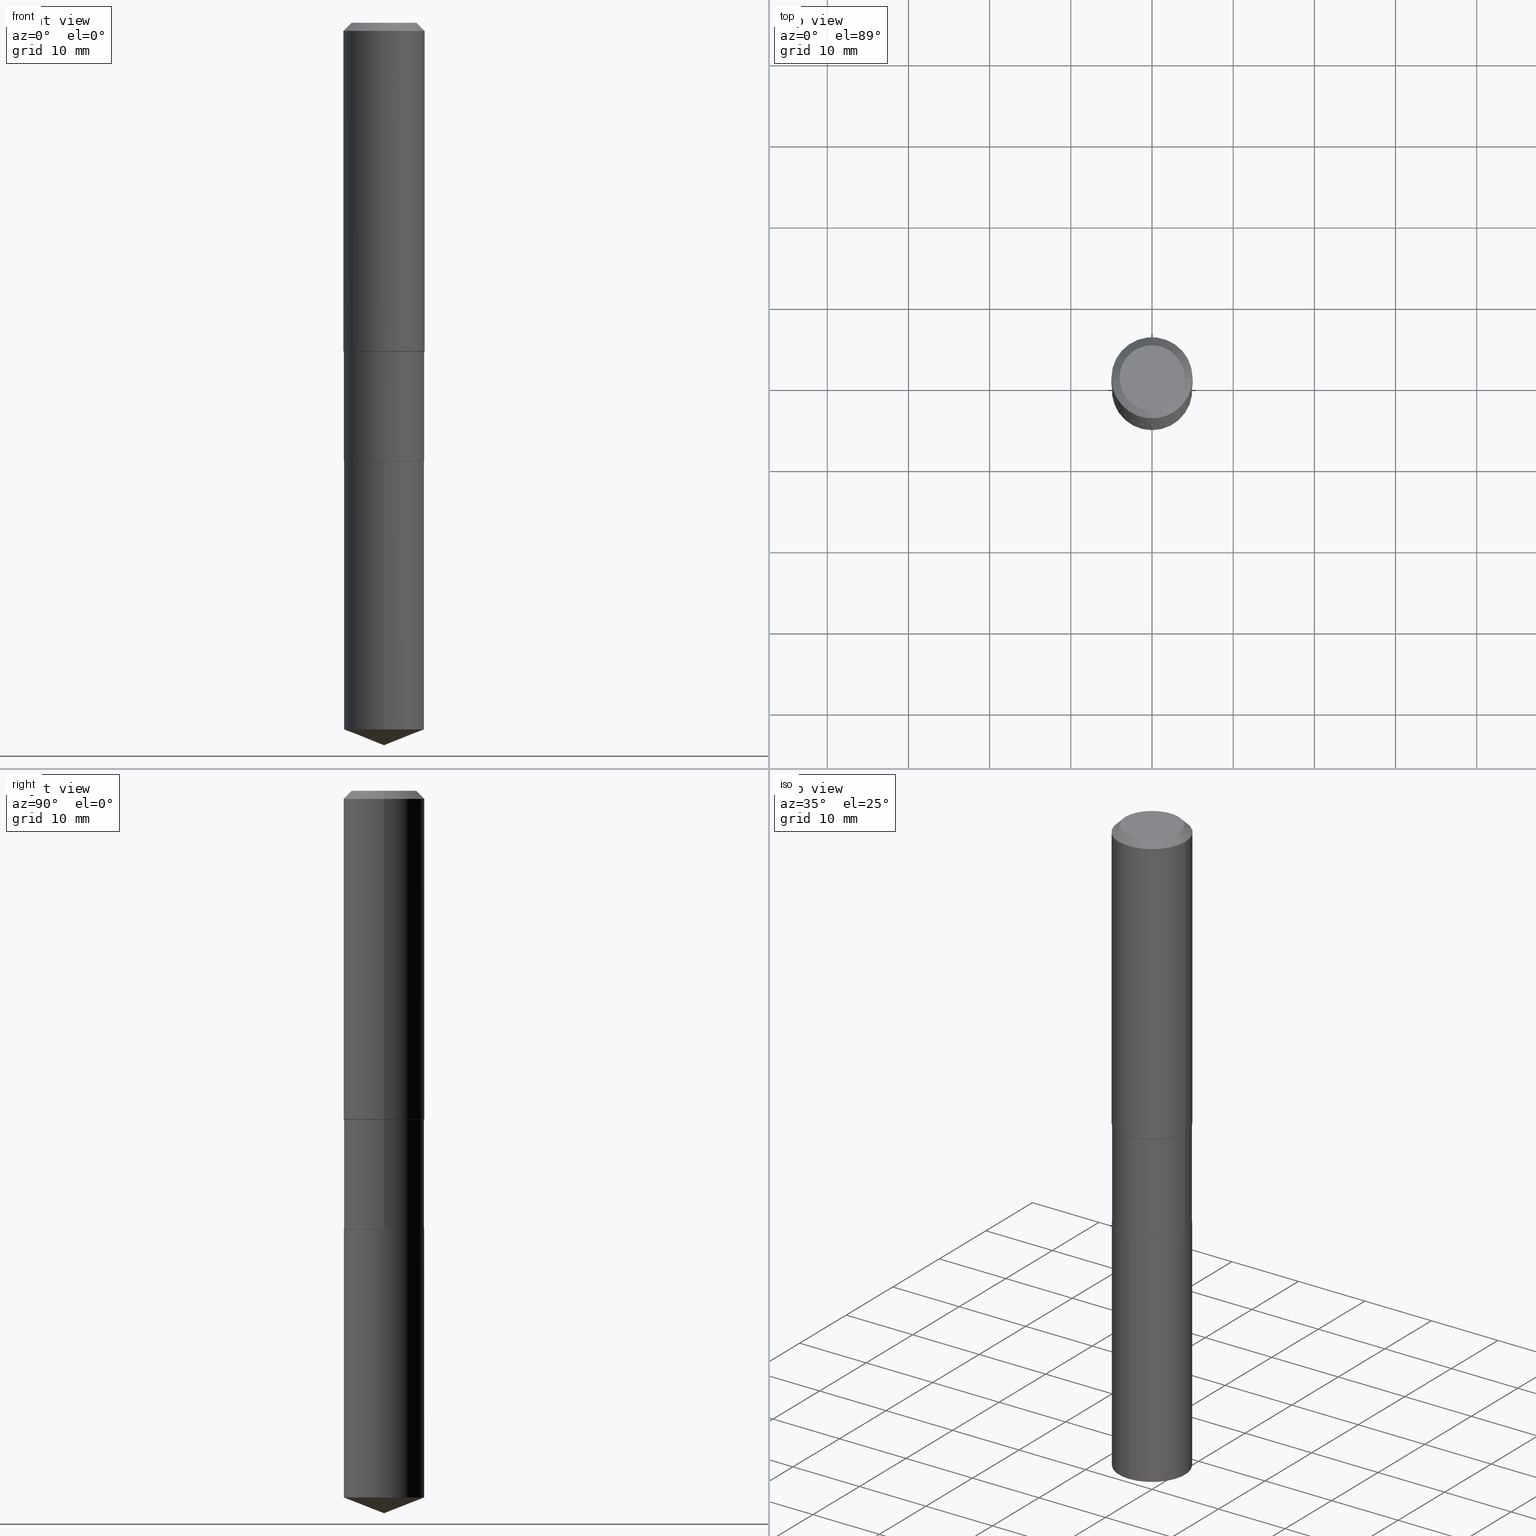
[diagram: canonical four-view strip — front | top / right | iso, engineering-drawing reading convention]
A machine part, canonical four-view strip (front | top / right | iso — engineering-drawing reading convention). The complete STEP part file that produces these views, byte-faithful:
ISO-10303-21;
HEADER;
FILE_DESCRIPTION (( 'STEP AP203' ),
    '1' );
FILE_NAME ('66469.STEP',
    '2024-04-24T23:18:03',
    ( '' ),
    ( '' ),
    'SwSTEP 2.0',
    'SolidWorks 2023',
    '' );
FILE_SCHEMA (( 'CONFIG_CONTROL_DESIGN' ));
ENDSEC;

DATA;
#1 = EDGE_CURVE ( 'NONE', #280, #487, #127, .T. ) ;
#2 = DIRECTION ( 'NONE',  ( 2.445468806185136597E-29, -3.491481338843145583E-15, -1.000000000000000000 ) ) ;
#3 = DIRECTION ( 'NONE',  ( -2.445600057802036841E-29, 3.491293379057366203E-15, 1.000000000000000000 ) ) ;
#4 = DIRECTION ( 'NONE',  ( -2.445468806185136877E-29, 3.491481338843145188E-15, 1.000000000000000000 ) ) ;
#5 = FACE_OUTER_BOUND ( 'NONE', #322, .T. ) ;
#6 = AXIS2_PLACEMENT_3D ( 'NONE', #312, #380, #207 ) ;
#7 = EDGE_CURVE ( 'NONE', #487, #280, #344, .T. ) ;
#8 = DIRECTION ( 'NONE',  ( -2.445468806185136597E-29, 3.491481338843145583E-15, 1.000000000000000000 ) ) ;
#9 = DIRECTION ( 'NONE',  ( -2.445468806185136597E-29, 3.491481338843145583E-15, 1.000000000000000000 ) ) ;
#10 = CONICAL_SURFACE ( 'NONE', #203, 0.1948999999999999067, 0.7853981633974658205 ) ;
#11 = AXIS2_PLACEMENT_3D ( 'NONE', #171, #307, #15 ) ;
#12 = ADVANCED_FACE ( 'NONE', ( #341 ), #265, .T. ) ;
#13 = CARTESIAN_POINT ( 'NONE',  ( 5.197599400665889285E-29, -7.420794437577220826E-15, -2.125399999999999956 ) ) ;
#14 = ORIENTED_EDGE ( 'NONE', *, *, #350, .F. ) ;
#15 = DIRECTION ( 'NONE',  ( 1.000000000000000000, -6.982962677686265922E-15, 0.000000000000000000 ) ) ;
#16 = EDGE_LOOP ( 'NONE', ( #366, #244, #111 ) ) ;
#17 = DIRECTION ( 'NONE',  ( -2.445468806185136597E-29, 3.491481338843145583E-15, 1.000000000000000000 ) ) ;
#18 = MECHANICAL_CONTEXT ( 'NONE', #185, 'mechanical' ) ;
#19 = AXIS2_PLACEMENT_3D ( 'NONE', #423, #474, #337 ) ;
#20 = APPROVAL_PERSON_ORGANIZATION ( #216, #158, #91 ) ;
#21 = CARTESIAN_POINT ( 'NONE',  ( -0.1968500000000000250, 1.237136582792286225E-15, -0.03937000000000029365 ) ) ;
#22 = LENGTH_MEASURE_WITH_UNIT ( LENGTH_MEASURE( 0.02539999999999999897 ), #97 );
#23 = DIRECTION ( 'NONE',  ( -6.982962677686266711E-15, -1.000000000000000000, 2.803332984776052637E-15 ) ) ;
#24 = VERTEX_POINT ( 'NONE', #122 ) ;
#25 = CARTESIAN_POINT ( 'NONE',  ( 0.000000000000000000, 0.000000000000000000, 0.000000000000000000 ) ) ;
#26 = ORIENTED_EDGE ( 'NONE', *, *, #379, .T. ) ;
#27 = LINE ( 'NONE', #21, #399 ) ;
#28 = DIRECTION ( 'NONE',  ( 1.000000000000000000, -6.982962677686265922E-15, 4.876223630392693006E-29 ) ) ;
#29 = ORIENTED_EDGE ( 'NONE', *, *, #325, .T. ) ;
#30 = PERSON_AND_ORGANIZATION ( #125, #138 ) ;
#31 = ADVANCED_FACE ( 'NONE', ( #233 ), #164, .F. ) ;
#32 = AXIS2_PLACEMENT_3D ( 'NONE', #415, #456, #86 ) ;
#33 = AXIS2_PLACEMENT_3D ( 'NONE', #333, #2, #159 ) ;
#34 = VERTEX_POINT ( 'NONE', #199 ) ;
#35 = ORIENTED_EDGE ( 'NONE', *, *, #167, .F. ) ;
#36 = EDGE_CURVE ( 'NONE', #488, #224, #46, .T. ) ;
#37 = FACE_OUTER_BOUND ( 'NONE', #218, .T. ) ;
#38 = CARTESIAN_POINT ( 'NONE',  ( -8.771460782787969861E-28, 1.252189527838912910E-13, 35.86617874015747987 ) ) ;
#39 = AXIS2_PLACEMENT_3D ( 'NONE', #263, #52, #78 ) ;
#40 = CARTESIAN_POINT ( 'NONE',  ( 0.1943999999999999895, -8.780028122788853203E-15, -2.125899999999999679 ) ) ;
#41 = AXIS2_PLACEMENT_3D ( 'NONE', #133, #272, #385 ) ;
#42 = DIRECTION ( 'NONE',  ( -2.445468806185136597E-29, 3.491481338843145583E-15, 1.000000000000000000 ) ) ;
#43 = CARTESIAN_POINT ( 'NONE',  ( 3.900522745865292334E-29, -5.568912735454817265E-15, -1.594999999999999751 ) ) ;
#44 = ADVANCED_FACE ( 'NONE', ( #334 ), #220, .T. ) ;
#45 = CARTESIAN_POINT ( 'NONE',  ( -0.1968500000000002192, -4.163400971500313642E-15, -1.593049999999999633 ) ) ;
#46 = LINE ( 'NONE', #301, #259 ) ;
#47 = CARTESIAN_POINT ( 'NONE',  ( -0.1948999999999999344, 1.384847791996434796E-15, -9.587004490906808522E-30 ) ) ;
#48 = DIRECTION ( 'NONE',  ( 6.982962677686265922E-15, 1.000000000000000000, -3.491293379057366203E-15 ) ) ;
#49 = AXIS2_PLACEMENT_3D ( 'NONE', #231, #452, #373 ) ;
#50 = DIRECTION ( 'NONE',  ( 1.000000000000000000, -6.982962677686265922E-15, 4.876223630392693006E-29 ) ) ;
#51 = DIRECTION ( 'NONE',  ( -2.445600057802036841E-29, 3.491293379057366203E-15, 1.000000000000000000 ) ) ;
#52 = DIRECTION ( 'NONE',  ( -2.445468806185136597E-29, 3.491481338843145583E-15, 1.000000000000000000 ) ) ;
#53 = ORIENTED_EDGE ( 'NONE', *, *, #183, .T. ) ;
#54 = DATE_AND_TIME ( #430, #151 ) ;
#55 = APPROVAL_PERSON_ORGANIZATION ( #470, #176, #275 ) ;
#56 = ORIENTED_EDGE ( 'NONE', *, *, #313, .T. ) ;
#57 = APPLICATION_PROTOCOL_DEFINITION ( 'international standard', 'config_control_design', 1994, #206 ) ;
#58 = CARTESIAN_POINT ( 'NONE',  ( 0.1968500000000000250, -1.512055823412797189E-15, -0.03937000000000029365 ) ) ;
#59 = DIRECTION ( 'NONE',  ( 1.000000000000000000, -6.982962677686265922E-15, 4.876176775795935793E-29 ) ) ;
#60 = ADVANCED_FACE ( 'NONE', ( #5 ), #398, .T. ) ;
#61 = PERSON_AND_ORGANIZATION ( #125, #138 ) ;
#62 = ORIENTED_EDGE ( 'NONE', *, *, #298, .T. ) ;
#63 = AXIS2_PLACEMENT_3D ( 'NONE', #283, #74, #434 ) ;
#64 = ORIENTED_EDGE ( 'NONE', *, *, #420, .F. ) ;
#65 = LINE ( 'NONE', #353, #161 ) ;
#66 = DATE_AND_TIME ( #278, #377 ) ;
#67 = ORIENTED_EDGE ( 'NONE', *, *, #102, .F. ) ;
#68 = ADVANCED_FACE ( 'NONE', ( #330 ), #448, .F. ) ;
#69 = ORIENTED_EDGE ( 'NONE', *, *, #1, .F. ) ;
#70 = VECTOR ( 'NONE', #267, 39.37007874015748143 ) ;
#71 = VERTEX_POINT ( 'NONE', #227 ) ;
#72 = ORIENTED_EDGE ( 'NONE', *, *, #183, .F. ) ;
#73 = EDGE_CURVE ( 'NONE', #386, #487, #371, .T. ) ;
#74 = DIRECTION ( 'NONE',  ( -2.445468806185136597E-29, 3.491481338843145583E-15, 1.000000000000000000 ) ) ;
#75 = DIRECTION ( 'NONE',  ( -1.000000000000000000, 6.982962677686265922E-15, -4.876176775795935793E-29 ) ) ;
#76 = CLOSED_SHELL ( 'NONE', ( #256, #335, #93, #124, #135, #172, #12, #401, #44, #68, #467, #80 ) ) ;
#77 = AXIS2_PLACEMENT_3D ( 'NONE', #25, #355, #104 ) ;
#78 = DIRECTION ( 'NONE',  ( 1.000000000000000000, -6.982962677686267499E-15, 0.000000000000000000 ) ) ;
#79 = DIRECTION ( 'NONE',  ( 1.000000000000000000, -6.982962677686267499E-15, 0.000000000000000000 ) ) ;
#80 = ADVANCED_FACE ( 'NONE', ( #293 ), #240, .T. ) ;
#81 = CARTESIAN_POINT ( 'NONE',  ( -1.360979425881001224E-15, -0.1949000000000074007, -2.125899999999999235 ) ) ;
#82 = CARTESIAN_POINT ( 'NONE',  ( 5.198822135068982087E-29, -7.422540178246643119E-15, -2.125899999999999679 ) ) ;
#83 = AXIS2_PLACEMENT_3D ( 'NONE', #279, #42, #28 ) ;
#84 = CC_DESIGN_APPROVAL ( #158, ( #306 ) ) ;
#85 = CARTESIAN_POINT ( 'NONE',  ( -0.1968500000000000250, -1.451078608233405323E-15, -0.03937000000000029365 ) ) ;
#86 = DIRECTION ( 'NONE',  ( -1.000000000000000000, 6.982962677686265922E-15, 0.000000000000000000 ) ) ;
#87 = CYLINDRICAL_SURFACE ( 'NONE', #296, 0.1968500000000001082 ) ;
#88 = DATE_TIME_ROLE ( 'classification_date' ) ;
#89 = CC_DESIGN_PERSON_AND_ORGANIZATION_ASSIGNMENT ( #421, #103, ( #354 ) ) ;
#90 = DIRECTION ( 'NONE',  ( -2.445468806185136597E-29, 3.491481338843145583E-15, 1.000000000000000000 ) ) ;
#91 = APPROVAL_ROLE ( '' ) ;
#92 = CARTESIAN_POINT ( 'NONE',  ( -0.1943999999999999895, -6.038595872754897034E-15, -2.125899999999999679 ) ) ;
#93 = ADVANCED_FACE ( 'NONE', ( #282 ), #87, .T. ) ;
#94 = PLANE ( 'NONE',  #221 ) ;
#95 = VERTEX_POINT ( 'NONE', #416 ) ;
#96 = CALENDAR_DATE ( 2024, 24, 4 ) ;
#97 =( LENGTH_UNIT ( ) NAMED_UNIT ( * ) SI_UNIT ( $, .METRE. ) );
#98 = DIRECTION ( 'NONE',  ( -6.982962677686266711E-15, -1.000000000000000000, 2.803332984776052637E-15 ) ) ;
#99 = DATE_AND_TIME ( #426, #321 ) ;
#100 = DIRECTION ( 'NONE',  ( -2.445468806185136597E-29, 3.491481338843145583E-15, 1.000000000000000000 ) ) ;
#101 = ORIENTED_EDGE ( 'NONE', *, *, #192, .F. ) ;
#102 = EDGE_CURVE ( 'NONE', #142, #388, #160, .T. ) ;
#103 = PERSON_AND_ORGANIZATION_ROLE ( 'creator' ) ;
#104 = DIRECTION ( 'NONE',  ( 1.000000000000000000, 0.000000000000000000, 0.000000000000000000 ) ) ;
#105 = VERTEX_POINT ( 'NONE', #92 ) ;
#106 = CIRCLE ( 'NONE', #247, 0.1948999999999999899 ) ;
#107 = CC_DESIGN_DATE_AND_TIME_ASSIGNMENT ( #66, #180, ( #342 ) ) ;
#108 = APPROVAL_DATE_TIME ( #99, #176 ) ;
#109 = LINE ( 'NONE', #360, #212 ) ;
#110 = ORIENTED_EDGE ( 'NONE', *, *, #208, .T. ) ;
#111 = ORIENTED_EDGE ( 'NONE', *, *, #336, .F. ) ;
#112 = ORIENTED_EDGE ( 'NONE', *, *, #148, .F. ) ;
#113 = VECTOR ( 'NONE', #156, 39.37007874015748143 ) ;
#114 = CC_DESIGN_APPROVAL ( #176, ( #342 ) ) ;
#115 = ORIENTED_EDGE ( 'NONE', *, *, #485, .T. ) ;
#116 = DIRECTION ( 'NONE',  ( -2.445600057802036841E-29, 3.491293379057366203E-15, 1.000000000000000000 ) ) ;
#117 = DIRECTION ( 'NONE',  ( 2.438088387897960049E-29, -3.491481338843145188E-15, -1.000000000000000000 ) ) ;
#118 = DIRECTION ( 'NONE',  ( -2.445468806185136597E-29, 3.491481338843145583E-15, 1.000000000000000000 ) ) ;
#119 = CIRCLE ( 'NONE', #6, 0.1948999999999999899 ) ;
#120 = EDGE_CURVE ( 'NONE', #24, #386, #363, .T. ) ;
#121 = CARTESIAN_POINT ( 'NONE',  ( 1.384847791996486861E-15, 0.1948999999999925792, -2.125900000000000567 ) ) ;
#122 = CARTESIAN_POINT ( 'NONE',  ( 0.1948999999999999067, -6.929892161335869568E-15, -1.594999999999999751 ) ) ;
#123 = CARTESIAN_POINT ( 'NONE',  ( 0.1948999999999999067, -6.929892161335869568E-15, -1.594999999999999751 ) ) ;
#124 = ADVANCED_FACE ( 'NONE', ( #326 ), #10, .T. ) ;
#125 = PERSON ( 'UNSPECIFIED', 'UNSPECIFIED', 'UNSPECIFIED', ('UNSPECIFIED'), ('UNSPECIFIED'), ('UNSPECIFIED') ) ;
#126 = DIRECTION ( 'NONE',  ( 1.000000000000000000, -6.982962677686267499E-15, 0.000000000000000000 ) ) ;
#127 = CIRCLE ( 'NONE', #443, 0.1968500000000000250 ) ;
#128 = UNCERTAINTY_MEASURE_WITH_UNIT (LENGTH_MEASURE( 1.000000000000000082E-05 ), #393, 'distance_accuracy_value', 'NONE');
#129 = DATE_AND_TIME ( #96, #174 ) ;
#130 = VECTOR ( 'NONE', #4, 39.37007874015748143 ) ;
#131 = FACE_OUTER_BOUND ( 'NONE', #367, .T. ) ;
#132 = LINE ( 'NONE', #81, #213 ) ;
#133 = CARTESIAN_POINT ( 'NONE',  ( -8.771460782787969861E-28, 1.252189527838912910E-13, 35.86617874015747987 ) ) ;
#134 = ORIENTED_EDGE ( 'NONE', *, *, #73, .T. ) ;
#135 = ADVANCED_FACE ( 'NONE', ( #37 ), #480, .T. ) ;
#136 = APPROVAL_STATUS ( 'not_yet_approved' ) ;
#137 = AXIS2_PLACEMENT_3D ( 'NONE', #43, #455, #79 ) ;
#138 = ORGANIZATION ( 'UNSPECIFIED', 'UNSPECIFIED', '' ) ;
#139 = EDGE_LOOP ( 'NONE', ( #14, #476, #303, #251 ) ) ;
#140 = DIRECTION ( 'NONE',  ( 1.000000000000000000, -6.982962677686265922E-15, 0.000000000000000000 ) ) ;
#141 = ORIENTED_EDGE ( 'NONE', *, *, #73, .F. ) ;
#142 = VERTEX_POINT ( 'NONE', #403 ) ;
#143 = CARTESIAN_POINT ( 'NONE',  ( 0.000000000000000000, 0.000000000000000000, 0.000000000000000000 ) ) ;
#144 = ORIENTED_EDGE ( 'NONE', *, *, #478, .T. ) ;
#145 = ORIENTED_EDGE ( 'NONE', *, *, #458, .F. ) ;
#146 = COORDINATED_UNIVERSAL_TIME_OFFSET ( 5, 0, .BEHIND. ) ;
#147 = ORIENTED_EDGE ( 'NONE', *, *, #478, .F. ) ;
#148 = EDGE_CURVE ( 'NONE', #327, #280, #290, .T. ) ;
#149 = ORIENTED_EDGE ( 'NONE', *, *, #313, .F. ) ;
#150 = AXIS2_PLACEMENT_3D ( 'NONE', #441, #116, #257 ) ;
#151 = LOCAL_TIME ( 19, 18, 3.000000000000000000, #238 ) ;
#152 = DIRECTION ( 'NONE',  ( 1.000000000000000000, -6.982962677686266711E-15, 4.876176775795936914E-29 ) ) ;
#153 = CARTESIAN_POINT ( 'NONE',  ( 9.627810689950954155E-31, -1.374596203102556547E-16, -0.03937000000000029365 ) ) ;
#154 = FACE_OUTER_BOUND ( 'NONE', #315, .T. ) ;
#155 = CARTESIAN_POINT ( 'NONE',  ( 0.1943999999999999895, -8.780028122788853203E-15, -2.125899999999999679 ) ) ;
#156 = DIRECTION ( 'NONE',  ( -2.445468806185136877E-29, 3.491481338843145188E-15, 1.000000000000000000 ) ) ;
#157 = CYLINDRICAL_SURFACE ( 'NONE', #241, 0.1948999999999999899 ) ;
#158 = APPROVAL ( #465, 'UNSPECIFIED' ) ;
#159 = DIRECTION ( 'NONE',  ( -1.000000000000000000, 6.982962677686265922E-15, 0.000000000000000000 ) ) ;
#160 = CIRCLE ( 'NONE', #19, 0.1948999999999999899 ) ;
#161 = VECTOR ( 'NONE', #440, 39.37007874015748143 ) ;
#162 = CARTESIAN_POINT ( 'NONE',  ( 0.000000000000000000, 0.000000000000000000, 0.000000000000000000 ) ) ;
#163 = EDGE_CURVE ( 'NONE', #284, #71, #320, .T. ) ;
#164 = PLANE ( 'NONE',  #254 ) ;
#165 = CARTESIAN_POINT ( 'NONE',  ( 5.198822135068982087E-29, -7.422540178246643119E-15, -2.125899999999999679 ) ) ;
#166 = ORIENTED_EDGE ( 'NONE', *, *, #485, .F. ) ;
#167 = EDGE_CURVE ( 'NONE', #484, #95, #352, .T. ) ;
#168 = AXIS2_PLACEMENT_3D ( 'NONE', #406, #117, #75 ) ;
#169 = VECTOR ( 'NONE', #414, 39.37007874015748143 ) ;
#170 = DIMENSIONAL_EXPONENTS ( 1.000000000000000000, 0.000000000000000000, 0.000000000000000000, 0.000000000000000000, 0.000000000000000000, 0.000000000000000000, 0.000000000000000000 ) ;
#171 = CARTESIAN_POINT ( 'NONE',  ( 3.895754081693231081E-29, -5.562104346844071429E-15, -1.593049999999999633 ) ) ;
#172 = ADVANCED_FACE ( 'NONE', ( #217 ), #405, .T. ) ;
#173 = AXIS2_PLACEMENT_3D ( 'NONE', #234, #90, #50 ) ;
#174 = LOCAL_TIME ( 19, 18, 3.000000000000000000, #249 ) ;
#175 = PERSON_AND_ORGANIZATION ( #125, #138 ) ;
#176 = APPROVAL ( #136, 'UNSPECIFIED' ) ;
#177 = DIRECTION ( 'NONE',  ( 1.000000000000000000, -6.982962677686269866E-15, 0.000000000000000000 ) ) ;
#178 = ORIENTED_EDGE ( 'NONE', *, *, #413, .T. ) ;
#179 = SECURITY_CLASSIFICATION_LEVEL ( 'unclassified' ) ;
#180 = DATE_TIME_ROLE ( 'creation_date' ) ;
#181 = DIRECTION ( 'NONE',  ( -2.445600057802036841E-29, 3.491293379057366203E-15, 1.000000000000000000 ) ) ;
#182 = ORIENTED_EDGE ( 'NONE', *, *, #311, .T. ) ;
#183 = EDGE_CURVE ( 'NONE', #284, #487, #109, .T. ) ;
#184 = DIRECTION ( 'NONE',  ( -0.7071067811865450192, 2.468850131082230634E-15, -0.7071067811865500152 ) ) ;
#185 = APPLICATION_CONTEXT ( 'configuration controlled 3d designs of mechanical parts and assemblies' ) ;
#186 = DIRECTION ( 'NONE',  ( 0.7071067811865450192, -7.319954787623246579E-15, -0.7071067811865500152 ) ) ;
#187 = EDGE_LOOP ( 'NONE', ( #110, #404, #166, #442 ) ) ;
#188 = PERSON_AND_ORGANIZATION_ROLE ( 'classification_officer' ) ;
#189 = AXIS2_PLACEMENT_3D ( 'NONE', #243, #419, #317 ) ;
#190 = ORIENTED_EDGE ( 'NONE', *, *, #7, .T. ) ;
#191 = CC_DESIGN_PERSON_AND_ORGANIZATION_ASSIGNMENT ( #30, #362, ( #354 ) ) ;
#192 = EDGE_CURVE ( 'NONE', #105, #142, #483, .T. ) ;
#193 = ORIENTED_EDGE ( 'NONE', *, *, #432, .T. ) ;
#194 = DIRECTION ( 'NONE',  ( -6.982962677686265133E-15, -1.000000000000000000, 3.498627837349999095E-15 ) ) ;
#195 = AXIS2_PLACEMENT_3D ( 'NONE', #162, #9, #459 ) ;
#196 = CARTESIAN_POINT ( 'NONE',  ( 0.1968500000000001082, -1.374596203102542397E-15, 9.598753983154305062E-30 ) ) ;
#197 = APPROVAL_DATE_TIME ( #54, #158 ) ;
#198 = FACE_OUTER_BOUND ( 'NONE', #361, .T. ) ;
#199 = CARTESIAN_POINT ( 'NONE',  ( -1.360979425880969472E-15, -0.1949000000000119248, -3.427126848302648021 ) ) ;
#200 = CIRCLE ( 'NONE', #173, 0.1574800000000000089 ) ;
#201 = LINE ( 'NONE', #340, #288 ) ;
#202 = DIRECTION ( 'NONE',  ( -6.982962677686266711E-15, -1.000000000000000000, 2.803332984776052637E-15 ) ) ;
#203 = AXIS2_PLACEMENT_3D ( 'NONE', #436, #368, #329 ) ;
#204 = CONICAL_SURFACE ( 'NONE', #33, 0.1968500000000000250, 0.7853981633974447263 ) ;
#205 = PRODUCT ( '66469', '66469', '', ( #18 ) ) ;
#206 = APPLICATION_CONTEXT ( 'configuration controlled 3d designs of mechanical parts and assemblies' ) ;
#207 = DIRECTION ( 'NONE',  ( -6.982962677686266711E-15, -1.000000000000000000, 2.803332984776052637E-15 ) ) ;
#208 = EDGE_CURVE ( 'NONE', #24, #276, #389, .T. ) ;
#209 = ORIENTED_EDGE ( 'NONE', *, *, #420, .T. ) ;
#210 = CARTESIAN_POINT ( 'NONE',  ( 3.895754081693231081E-29, -5.562104346844071429E-15, -1.593049999999999633 ) ) ;
#211 = CARTESIAN_POINT ( 'NONE',  ( 8.569138042532557080E-29, -1.223314287087910590E-14, -3.503899999999999793 ) ) ;
#212 = VECTOR ( 'NONE', #186, 39.37007874015748143 ) ;
#213 = VECTOR ( 'NONE', #266, 39.37007874015748143 ) ;
#214 = EDGE_LOOP ( 'NONE', ( #101, #309, #29, #67 ) ) ;
#215 = ORIENTED_EDGE ( 'NONE', *, *, #163, .T. ) ;
#216 = PERSON_AND_ORGANIZATION ( #125, #138 ) ;
#217 = FACE_OUTER_BOUND ( 'NONE', #277, .T. ) ;
#218 = EDGE_LOOP ( 'NONE', ( #273, #397, #318, #437 ) ) ;
#219 = ORIENTED_EDGE ( 'NONE', *, *, #102, .T. ) ;
#220 = CONICAL_SURFACE ( 'NONE', #32, 0.1968500000000000250, 0.7853981633974447263 ) ;
#221 = AXIS2_PLACEMENT_3D ( 'NONE', #351, #348, #59 ) ;
#222 = DIRECTION ( 'NONE',  ( -2.445468806185136597E-29, 3.491481338843145583E-15, 1.000000000000000000 ) ) ;
#223 = EDGE_LOOP ( 'NONE', ( #62, #215 ) ) ;
#224 = VERTEX_POINT ( 'NONE', #372 ) ;
#225 = CC_DESIGN_DATE_AND_TIME_ASSIGNMENT ( #305, #88, ( #306 ) ) ;
#226 = CARTESIAN_POINT ( 'NONE',  ( -0.1968500000000001082, 1.398703375343757985E-15, -9.682923725166787881E-30 ) ) ;
#227 = CARTESIAN_POINT ( 'NONE',  ( -0.1574800000000000089, 1.168406772637159618E-15, 3.855188123707939751E-18 ) ) ;
#228 = CIRCLE ( 'NONE', #422, 0.1968500000000002192 ) ;
#229 = CYLINDRICAL_SURFACE ( 'NONE', #195, 0.1968500000000001082 ) ;
#230 = PRODUCT_RELATED_PRODUCT_CATEGORY ( 'detail', '', ( #205 ) ) ;
#231 = CARTESIAN_POINT ( 'NONE',  ( 9.627810689950954155E-31, -1.374596203102556547E-16, -0.03937000000000029365 ) ) ;
#232 = DIRECTION ( 'NONE',  ( -6.982962677686266711E-15, -1.000000000000000000, 2.803332984776052637E-15 ) ) ;
#233 = FACE_OUTER_BOUND ( 'NONE', #248, .T. ) ;
#234 = CARTESIAN_POINT ( 'NONE',  ( -9.427742298522567634E-47, 1.346031739168368355E-32, 3.855188123715870730E-18 ) ) ;
#235 = EDGE_CURVE ( 'NONE', #394, #105, #382, .T. ) ;
#236 = CIRCLE ( 'NONE', #11, 0.1968500000000002192 ) ;
#237 = FACE_OUTER_BOUND ( 'NONE', #287, .T. ) ;
#238 = COORDINATED_UNIVERSAL_TIME_OFFSET ( 5, 0, .BEHIND. ) ;
#239 = CC_DESIGN_PERSON_AND_ORGANIZATION_ASSIGNMENT ( #384, #387, ( #205 ) ) ;
#240 = CONICAL_SURFACE ( 'NONE', #462, 0.1943999999999999895, 0.7853981633975507526 ) ;
#241 = AXIS2_PLACEMENT_3D ( 'NONE', #475, #181, #23 ) ;
#242 =( NAMED_UNIT ( * ) SI_UNIT ( $, .STERADIAN. ) SOLID_ANGLE_UNIT ( ) );
#243 = CARTESIAN_POINT ( 'NONE',  ( 5.198822135068982087E-29, -7.422540178246643119E-15, -2.125899999999999679 ) ) ;
#244 = ORIENTED_EDGE ( 'NONE', *, *, #36, .T. ) ;
#245 = AXIS2_PLACEMENT_3D ( 'NONE', #294, #300, #292 ) ;
#246 = PERSON_AND_ORGANIZATION_ROLE ( 'creator' ) ;
#247 = AXIS2_PLACEMENT_3D ( 'NONE', #13, #100, #177 ) ;
#248 = EDGE_LOOP ( 'NONE', ( #481, #144 ) ) ;
#249 = COORDINATED_UNIVERSAL_TIME_OFFSET ( 5, 0, .BEHIND. ) ;
#250 = ORIENTED_EDGE ( 'NONE', *, *, #413, .F. ) ;
#251 = ORIENTED_EDGE ( 'NONE', *, *, #432, .F. ) ;
#252 = CARTESIAN_POINT ( 'NONE',  ( 0.1948999999999999899, -8.781773863458275496E-15, -2.125399999999999956 ) ) ;
#253 = ORIENTED_EDGE ( 'NONE', *, *, #262, .T. ) ;
#254 = AXIS2_PLACEMENT_3D ( 'NONE', #264, #412, #48 ) ;
#255 = ORIENTED_EDGE ( 'NONE', *, *, #379, .F. ) ;
#256 = ADVANCED_FACE ( 'NONE', ( #131 ), #417, .T. ) ;
#257 = DIRECTION ( 'NONE',  ( -6.982962677686266711E-15, -1.000000000000000000, 2.803332984776052637E-15 ) ) ;
#258 = DIRECTION ( 'NONE',  ( -2.445468806185136597E-29, 3.491481338843145583E-15, 1.000000000000000000 ) ) ;
#259 = VECTOR ( 'NONE', #291, 39.37007874015748854 ) ;
#260 = CARTESIAN_POINT ( 'NONE',  ( 8.381102590491500625E-29, -1.196550485837736517E-14, -3.427126848302648465 ) ) ;
#261 = CARTESIAN_POINT ( 'NONE',  ( 0.1948999999999999344, -1.360979425881052894E-15, 9.503668536026277414E-30 ) ) ;
#262 = EDGE_CURVE ( 'NONE', #388, #24, #332, .T. ) ;
#263 = CARTESIAN_POINT ( 'NONE',  ( 3.900522745865292334E-29, -5.568912735454817265E-15, -1.594999999999999751 ) ) ;
#264 = CARTESIAN_POINT ( 'NONE',  ( 5.198822135068982087E-29, -7.422540178246643119E-15, -2.125899999999999679 ) ) ;
#265 = CONICAL_SURFACE ( 'NONE', #137, 0.1948999999999999067, 0.7853981633974658205 ) ;
#266 = DIRECTION ( 'NONE',  ( -2.445600057802036841E-29, 3.491293379057366203E-15, 1.000000000000000000 ) ) ;
#267 = DIRECTION ( 'NONE',  ( -2.445600057802036841E-29, 3.491293379057366203E-15, 1.000000000000000000 ) ) ;
#268 = APPROVAL_DATE_TIME ( #129, #357 ) ;
#269 = ADVANCED_BREP_SHAPE_REPRESENTATION ( '66469', ( #433, #270, #77 ), #274 ) ;
#270 = MANIFOLD_SOLID_BREP ( 'Body-Move/Copy2[2]', #76 ) ;
#271 = EDGE_LOOP ( 'NONE', ( #149, #209, #178, #147 ) ) ;
#272 = DIRECTION ( 'NONE',  ( -2.445600057802036841E-29, 3.491293379057366203E-15, 1.000000000000000000 ) ) ;
#273 = ORIENTED_EDGE ( 'NONE', *, *, #457, .T. ) ;
#274 =( GEOMETRIC_REPRESENTATION_CONTEXT ( 3 ) GLOBAL_UNCERTAINTY_ASSIGNED_CONTEXT ( ( #128 ) ) GLOBAL_UNIT_ASSIGNED_CONTEXT ( ( #393, #472, #242 ) ) REPRESENTATION_CONTEXT ( 'NONE', 'WORKASPACE' ) );
#275 = APPROVAL_ROLE ( '' ) ;
#276 = VERTEX_POINT ( 'NONE', #449 ) ;
#277 = EDGE_LOOP ( 'NONE', ( #356, #219, #253, #381 ) ) ;
#278 = CALENDAR_DATE ( 2024, 24, 4 ) ;
#279 = CARTESIAN_POINT ( 'NONE',  ( -9.427742298522567634E-47, 1.346031739168368355E-32, 3.855188123715870730E-18 ) ) ;
#280 = VERTEX_POINT ( 'NONE', #85 ) ;
#281 = CC_DESIGN_PERSON_AND_ORGANIZATION_ASSIGNMENT ( #175, #246, ( #342 ) ) ;
#282 = FACE_OUTER_BOUND ( 'NONE', #285, .T. ) ;
#283 = CARTESIAN_POINT ( 'NONE',  ( 0.000000000000000000, 0.000000000000000000, 0.000000000000000000 ) ) ;
#284 = VERTEX_POINT ( 'NONE', #411 ) ;
#285 = EDGE_LOOP ( 'NONE', ( #115, #429, #308, #141 ) ) ;
#286 = VECTOR ( 'NONE', #447, 39.37007874015748143 ) ;
#287 = EDGE_LOOP ( 'NONE', ( #466, #56, #35, #250 ) ) ;
#288 = VECTOR ( 'NONE', #302, 39.37007874015748854 ) ;
#289 = ADVANCED_FACE ( 'NONE', ( #237 ), #378, .T. ) ;
#290 = LINE ( 'NONE', #226, #286 ) ;
#291 = DIRECTION ( 'NONE',  ( 6.611014441532067378E-15, 0.9304175679820272382, 0.3665012267242900301 ) ) ;
#292 = DIRECTION ( 'NONE',  ( 1.000000000000000000, -6.982962677686267499E-15, 0.000000000000000000 ) ) ;
#293 = FACE_OUTER_BOUND ( 'NONE', #214, .T. ) ;
#294 = CARTESIAN_POINT ( 'NONE',  ( 5.198822135068982087E-29, -7.422540178246643119E-15, -2.125899999999999679 ) ) ;
#295 = DIRECTION ( 'NONE',  ( 1.000000000000000000, -6.982962677686265922E-15, 0.000000000000000000 ) ) ;
#296 = AXIS2_PLACEMENT_3D ( 'NONE', #347, #395, #438 ) ;
#297 = AXIS2_PLACEMENT_3D ( 'NONE', #299, #409, #126 ) ;
#298 = EDGE_CURVE ( 'NONE', #71, #284, #200, .T. ) ;
#299 = CARTESIAN_POINT ( 'NONE',  ( 3.900522745865292334E-29, -5.568912735454817265E-15, -1.594999999999999751 ) ) ;
#300 = DIRECTION ( 'NONE',  ( -2.445468806185136597E-29, 3.491481338843145583E-15, 1.000000000000000000 ) ) ;
#301 = CARTESIAN_POINT ( 'NONE',  ( 8.569142936021653677E-29, -1.223314287087910590E-14, -3.503899999999999793 ) ) ;
#302 = DIRECTION ( 'NONE',  ( -6.497071151882121414E-15, -0.9304175679820246847, 0.3665012267242966360 ) ) ;
#303 = ORIENTED_EDGE ( 'NONE', *, *, #120, .T. ) ;
#304 = CC_DESIGN_PERSON_AND_ORGANIZATION_ASSIGNMENT ( #418, #188, ( #306 ) ) ;
#305 = DATE_AND_TIME ( #477, #444 ) ;
#306 = SECURITY_CLASSIFICATION ( '', '', #179 ) ;
#307 = DIRECTION ( 'NONE',  ( -2.445468806185136597E-29, 3.491481338843145583E-15, 1.000000000000000000 ) ) ;
#308 = ORIENTED_EDGE ( 'NONE', *, *, #7, .F. ) ;
#309 = ORIENTED_EDGE ( 'NONE', *, *, #458, .T. ) ;
#310 = AXIS2_PLACEMENT_3D ( 'NONE', #165, #8, #454 ) ;
#311 = EDGE_CURVE ( 'NONE', #488, #34, #201, .T. ) ;
#312 = CARTESIAN_POINT ( 'NONE',  ( 5.198822135068982087E-29, -7.422540178246643119E-15, -2.125899999999999679 ) ) ;
#313 = EDGE_CURVE ( 'NONE', #224, #95, #460, .T. ) ;
#314 = APPROVAL_ROLE ( '' ) ;
#315 = EDGE_LOOP ( 'NONE', ( #112, #193, #134, #69 ) ) ;
#316 = APPROVAL_STATUS ( 'not_yet_approved' ) ;
#317 = DIRECTION ( 'NONE',  ( 1.000000000000000000, -6.982962677686267499E-15, 0.000000000000000000 ) ) ;
#318 = ORIENTED_EDGE ( 'NONE', *, *, #208, .F. ) ;
#319 = DIRECTION ( 'NONE',  ( -2.445600057802036841E-29, 3.491293379057366203E-15, 1.000000000000000000 ) ) ;
#320 = CIRCLE ( 'NONE', #83, 0.1574800000000000089 ) ;
#321 = LOCAL_TIME ( 19, 18, 3.000000000000000000, #424 ) ;
#322 = EDGE_LOOP ( 'NONE', ( #358, #182, #64 ) ) ;
#323 = DIRECTION ( 'NONE',  ( 0.7071067811865598962, -2.468850131082386434E-15, 0.7071067811865351382 ) ) ;
#324 = ORIENTED_EDGE ( 'NONE', *, *, #457, .F. ) ;
#325 = EDGE_CURVE ( 'NONE', #394, #388, #490, .T. ) ;
#326 = FACE_OUTER_BOUND ( 'NONE', #187, .T. ) ;
#327 = VERTEX_POINT ( 'NONE', #45 ) ;
#328 = VECTOR ( 'NONE', #365, 39.37007874015748143 ) ;
#329 = DIRECTION ( 'NONE',  ( 1.000000000000000000, -6.982962677686267499E-15, 0.000000000000000000 ) ) ;
#330 = FACE_OUTER_BOUND ( 'NONE', #223, .T. ) ;
#331 = CC_DESIGN_SECURITY_CLASSIFICATION ( #306, ( #354 ) ) ;
#332 = LINE ( 'NONE', #261, #169 ) ;
#333 = CARTESIAN_POINT ( 'NONE',  ( 9.627810689950954155E-31, -1.374596203102556547E-16, -0.03937000000000029365 ) ) ;
#334 = FACE_OUTER_BOUND ( 'NONE', #469, .T. ) ;
#335 = ADVANCED_FACE ( 'NONE', ( #198 ), #204, .T. ) ;
#336 = EDGE_CURVE ( 'NONE', #34, #224, #482, .T. ) ;
#337 = DIRECTION ( 'NONE',  ( 1.000000000000000000, -6.982962677686269866E-15, 0.000000000000000000 ) ) ;
#338 = CLOSED_SHELL ( 'NONE', ( #289, #486, #60, #451, #31 ) ) ;
#339 = AXIS2_PLACEMENT_3D ( 'NONE', #260, #408, #232 ) ;
#340 = CARTESIAN_POINT ( 'NONE',  ( 8.568579986907819706E-29, -1.223394203829628348E-14, -3.503899999999999793 ) ) ;
#341 = FACE_OUTER_BOUND ( 'NONE', #139, .T. ) ;
#342 = PRODUCT_DEFINITION ( 'UNKNOWN', '', #354, #410 ) ;
#343 = EDGE_CURVE ( 'NONE', #142, #276, #375, .T. ) ;
#344 = CIRCLE ( 'NONE', #49, 0.1968500000000000250 ) ;
#345 = CIRCLE ( 'NONE', #189, 0.1943999999999999895 ) ;
#346 = CARTESIAN_POINT ( 'NONE',  ( -1.360979425881001224E-15, -0.1949000000000074007, -2.125899999999999235 ) ) ;
#347 = CARTESIAN_POINT ( 'NONE',  ( 0.000000000000000000, 0.000000000000000000, 0.000000000000000000 ) ) ;
#348 = DIRECTION ( 'NONE',  ( -2.438088387897960049E-29, 3.491481338843145188E-15, 1.000000000000000000 ) ) ;
#349 = ORIENTED_EDGE ( 'NONE', *, *, #235, .T. ) ;
#350 = EDGE_CURVE ( 'NONE', #276, #327, #65, .T. ) ;
#351 = CARTESIAN_POINT ( 'NONE',  ( 5.198822135068982087E-29, -7.422540178246643119E-15, -2.125899999999999679 ) ) ;
#352 = CIRCLE ( 'NONE', #150, 0.1948999999999999899 ) ;
#353 = CARTESIAN_POINT ( 'NONE',  ( -0.1948999999999999067, -4.184064943458382272E-15, -1.594999999999999751 ) ) ;
#354 = PRODUCT_DEFINITION_FORMATION_WITH_SPECIFIED_SOURCE ( 'ANY', '', #205, .NOT_KNOWN. ) ;
#355 = DIRECTION ( 'NONE',  ( 0.000000000000000000, 0.000000000000000000, 1.000000000000000000 ) ) ;
#356 = ORIENTED_EDGE ( 'NONE', *, *, #343, .F. ) ;
#357 = APPROVAL ( #316, 'UNSPECIFIED' ) ;
#358 = ORIENTED_EDGE ( 'NONE', *, *, #36, .F. ) ;
#359 = PRODUCT_DEFINITION_SHAPE ( 'NONE', 'NONE',  #342 ) ;
#360 = CARTESIAN_POINT ( 'NONE',  ( 0.1968500000000000250, -1.487948651171581601E-15, -0.03937000000000029365 ) ) ;
#361 = EDGE_LOOP ( 'NONE', ( #435, #53, #190, #255 ) ) ;
#362 = PERSON_AND_ORGANIZATION_ROLE ( 'design_supplier' ) ;
#363 = LINE ( 'NONE', #123, #364 ) ;
#364 = VECTOR ( 'NONE', #323, 39.37007874015748143 ) ;
#365 = DIRECTION ( 'NONE',  ( -0.7071067811866199593, 7.493145998870616062E-15, 0.7071067811864750752 ) ) ;
#366 = ORIENTED_EDGE ( 'NONE', *, *, #311, .F. ) ;
#367 = EDGE_LOOP ( 'NONE', ( #349, #473, #324, #392 ) ) ;
#368 = DIRECTION ( 'NONE',  ( -2.445468806185136597E-29, 3.491481338843145583E-15, 1.000000000000000000 ) ) ;
#369 = CARTESIAN_POINT ( 'NONE',  ( 0.1968500000000002192, -6.936700549946615404E-15, -1.593049999999999633 ) ) ;
#370 = AXIS2_PLACEMENT_3D ( 'NONE', #38, #3, #194 ) ;
#371 = LINE ( 'NONE', #196, #113 ) ;
#372 = CARTESIAN_POINT ( 'NONE',  ( 1.384847791996518810E-15, 0.1948999999999880550, -3.427126848302648909 ) ) ;
#373 = DIRECTION ( 'NONE',  ( 1.000000000000000000, -6.982962677686265922E-15, 0.000000000000000000 ) ) ;
#374 = SHAPE_DEFINITION_REPRESENTATION ( #359, #269 ) ;
#375 = LINE ( 'NONE', #47, #130 ) ;
#376 = AXIS2_PLACEMENT_3D ( 'NONE', #143, #222, #152 ) ;
#377 = LOCAL_TIME ( 19, 18, 3.000000000000000000, #391 ) ;
#378 = CYLINDRICAL_SURFACE ( 'NONE', #383, 0.1948999999999999899 ) ;
#379 = EDGE_CURVE ( 'NONE', #71, #280, #27, .T. ) ;
#380 = DIRECTION ( 'NONE',  ( -2.445600057802036841E-29, 3.491293379057366203E-15, 1.000000000000000000 ) ) ;
#381 = ORIENTED_EDGE ( 'NONE', *, *, #402, .F. ) ;
#382 = CIRCLE ( 'NONE', #245, 0.1943999999999999895 ) ;
#383 = AXIS2_PLACEMENT_3D ( 'NONE', #82, #51, #202 ) ;
#384 = PERSON_AND_ORGANIZATION ( #125, #138 ) ;
#385 = DIRECTION ( 'NONE',  ( -6.982962677686265133E-15, -1.000000000000000000, 3.498627837349999095E-15 ) ) ;
#386 = VERTEX_POINT ( 'NONE', #369 ) ;
#387 = PERSON_AND_ORGANIZATION_ROLE ( 'design_owner' ) ;
#388 = VERTEX_POINT ( 'NONE', #252 ) ;
#389 = CIRCLE ( 'NONE', #39, 0.1948999999999999067 ) ;
#390 = CIRCLE ( 'NONE', #297, 0.1948999999999999067 ) ;
#391 = COORDINATED_UNIVERSAL_TIME_OFFSET ( 5, 0, .BEHIND. ) ;
#392 = ORIENTED_EDGE ( 'NONE', *, *, #325, .F. ) ;
#393 =( CONVERSION_BASED_UNIT ( 'INCH', #22 ) LENGTH_UNIT ( ) NAMED_UNIT ( #170 ) );
#394 = VERTEX_POINT ( 'NONE', #40 ) ;
#395 = DIRECTION ( 'NONE',  ( -2.445468806185136597E-29, 3.491481338843145583E-15, 1.000000000000000000 ) ) ;
#396 = CARTESIAN_POINT ( 'NONE',  ( -0.1943999999999999895, -6.041245099929008235E-15, -2.125899999999999679 ) ) ;
#397 = ORIENTED_EDGE ( 'NONE', *, *, #343, .T. ) ;
#398 = CONICAL_SURFACE ( 'NONE', #370, 99.94676754584011746, 1.195550537616119957 ) ;
#399 = VECTOR ( 'NONE', #184, 39.37007874015748143 ) ;
#400 = ORIENTED_EDGE ( 'NONE', *, *, #235, .F. ) ;
#401 = ADVANCED_FACE ( 'NONE', ( #154 ), #229, .T. ) ;
#402 = EDGE_CURVE ( 'NONE', #276, #24, #390, .T. ) ;
#403 = CARTESIAN_POINT ( 'NONE',  ( -0.1948999999999999899, -5.110005794519583264E-15, -2.125399999999999956 ) ) ;
#404 = ORIENTED_EDGE ( 'NONE', *, *, #350, .T. ) ;
#405 = CYLINDRICAL_SURFACE ( 'NONE', #63, 0.1948999999999999344 ) ;
#406 = CARTESIAN_POINT ( 'NONE',  ( -4.713871149261283817E-47, 6.730158695841841775E-33, 1.927594061857935365E-18 ) ) ;
#407 = DIRECTION ( 'NONE',  ( 0.7071067811866199593, -2.468850131083015945E-15, 0.7071067811864750752 ) ) ;
#408 = DIRECTION ( 'NONE',  ( -2.445600057802036841E-29, 3.491293379057366203E-15, 1.000000000000000000 ) ) ;
#409 = DIRECTION ( 'NONE',  ( -2.445468806185136597E-29, 3.491481338843145583E-15, 1.000000000000000000 ) ) ;
#410 = DESIGN_CONTEXT ( 'detailed design', #206, 'design' ) ;
#411 = CARTESIAN_POINT ( 'NONE',  ( 0.1574800000000000089, -1.284169937930321189E-15, 3.855188123724205385E-18 ) ) ;
#412 = DIRECTION ( 'NONE',  ( 2.445600057802036561E-29, -3.491293379057366203E-15, -1.000000000000000000 ) ) ;
#413 = EDGE_CURVE ( 'NONE', #34, #484, #132, .T. ) ;
#414 = DIRECTION ( 'NONE',  ( -2.445468806185136877E-29, 3.491481338843145188E-15, 1.000000000000000000 ) ) ;
#415 = CARTESIAN_POINT ( 'NONE',  ( 9.627810689950954155E-31, -1.374596203102556547E-16, -0.03937000000000029365 ) ) ;
#416 = CARTESIAN_POINT ( 'NONE',  ( 1.384847791996518810E-15, 0.1948999999999925792, -2.125900000000000567 ) ) ;
#417 = CONICAL_SURFACE ( 'NONE', #310, 0.1943999999999999895, 0.7853981633975507526 ) ;
#418 = PERSON_AND_ORGANIZATION ( #125, #138 ) ;
#419 = DIRECTION ( 'NONE',  ( -2.445468806185136597E-29, 3.491481338843145583E-15, 1.000000000000000000 ) ) ;
#420 = EDGE_CURVE ( 'NONE', #224, #34, #463, .T. ) ;
#421 = PERSON_AND_ORGANIZATION ( #125, #138 ) ;
#422 = AXIS2_PLACEMENT_3D ( 'NONE', #210, #17, #140 ) ;
#423 = CARTESIAN_POINT ( 'NONE',  ( 5.197599400665889285E-29, -7.420794437577220826E-15, -2.125399999999999956 ) ) ;
#424 = COORDINATED_UNIVERSAL_TIME_OFFSET ( 5, 0, .BEHIND. ) ;
#425 = CARTESIAN_POINT ( 'NONE',  ( 8.381102590491500625E-29, -1.196550485837736517E-14, -3.427126848302648465 ) ) ;
#426 = CALENDAR_DATE ( 2024, 24, 4 ) ;
#427 = ORIENTED_EDGE ( 'NONE', *, *, #1, .T. ) ;
#428 = FACE_OUTER_BOUND ( 'NONE', #464, .T. ) ;
#429 = ORIENTED_EDGE ( 'NONE', *, *, #148, .T. ) ;
#430 = CALENDAR_DATE ( 2024, 24, 4 ) ;
#431 = VECTOR ( 'NONE', #407, 39.37007874015748143 ) ;
#432 = EDGE_CURVE ( 'NONE', #327, #386, #228, .T. ) ;
#433 = MANIFOLD_SOLID_BREP ( 'Body-Move/Copy2[1]', #338 ) ;
#434 = DIRECTION ( 'NONE',  ( 1.000000000000000000, -6.982962677686266711E-15, 4.876176775795936914E-29 ) ) ;
#435 = ORIENTED_EDGE ( 'NONE', *, *, #163, .F. ) ;
#436 = CARTESIAN_POINT ( 'NONE',  ( 3.900522745865292334E-29, -5.568912735454817265E-15, -1.594999999999999751 ) ) ;
#437 = ORIENTED_EDGE ( 'NONE', *, *, #262, .F. ) ;
#438 = DIRECTION ( 'NONE',  ( 1.000000000000000000, -6.982962677686266711E-15, 4.876176775795935793E-29 ) ) ;
#439 = FACE_OUTER_BOUND ( 'NONE', #271, .T. ) ;
#440 = DIRECTION ( 'NONE',  ( -0.7071067811865598962, 7.493145998870398336E-15, 0.7071067811865351382 ) ) ;
#441 = CARTESIAN_POINT ( 'NONE',  ( 5.198822135068982087E-29, -7.422540178246643119E-15, -2.125899999999999679 ) ) ;
#442 = ORIENTED_EDGE ( 'NONE', *, *, #120, .F. ) ;
#443 = AXIS2_PLACEMENT_3D ( 'NONE', #153, #258, #295 ) ;
#444 = LOCAL_TIME ( 19, 18, 3.000000000000000000, #146 ) ;
#445 = CC_DESIGN_APPROVAL ( #357, ( #354 ) ) ;
#446 = ORIENTED_EDGE ( 'NONE', *, *, #298, .F. ) ;
#447 = DIRECTION ( 'NONE',  ( -2.445468806185136877E-29, 3.491481338843145188E-15, 1.000000000000000000 ) ) ;
#448 = PLANE ( 'NONE',  #168 ) ;
#449 = CARTESIAN_POINT ( 'NONE',  ( -0.1948999999999999067, -5.110005794519583264E-15, -1.594999999999999751 ) ) ;
#450 = CARTESIAN_POINT ( 'NONE',  ( 5.198822135068982087E-29, -7.422540178246643119E-15, -2.125899999999999679 ) ) ;
#451 = ADVANCED_FACE ( 'NONE', ( #439 ), #157, .T. ) ;
#452 = DIRECTION ( 'NONE',  ( -2.445468806185136597E-29, 3.491481338843145583E-15, 1.000000000000000000 ) ) ;
#453 = APPROVAL_PERSON_ORGANIZATION ( #61, #357, #314 ) ;
#454 = DIRECTION ( 'NONE',  ( 1.000000000000000000, -6.982962677686267499E-15, 0.000000000000000000 ) ) ;
#455 = DIRECTION ( 'NONE',  ( -2.445468806185136597E-29, 3.491481338843145583E-15, 1.000000000000000000 ) ) ;
#456 = DIRECTION ( 'NONE',  ( 2.445468806185136597E-29, -3.491481338843145583E-15, -1.000000000000000000 ) ) ;
#457 = EDGE_CURVE ( 'NONE', #388, #142, #106, .T. ) ;
#458 = EDGE_CURVE ( 'NONE', #105, #394, #345, .T. ) ;
#459 = DIRECTION ( 'NONE',  ( 1.000000000000000000, -6.982962677686266711E-15, 4.876176775795935793E-29 ) ) ;
#460 = LINE ( 'NONE', #121, #70 ) ;
#461 = DIRECTION ( 'NONE',  ( 1.000000000000000000, -6.982962677686267499E-15, 0.000000000000000000 ) ) ;
#462 = AXIS2_PLACEMENT_3D ( 'NONE', #450, #118, #461 ) ;
#463 = CIRCLE ( 'NONE', #489, 0.1948999999999999899 ) ;
#464 = EDGE_LOOP ( 'NONE', ( #400, #145 ) ) ;
#465 = APPROVAL_STATUS ( 'not_yet_approved' ) ;
#466 = ORIENTED_EDGE ( 'NONE', *, *, #336, .T. ) ;
#467 = ADVANCED_FACE ( 'NONE', ( #428 ), #94, .F. ) ;
#468 = FACE_OUTER_BOUND ( 'NONE', #16, .T. ) ;
#469 = EDGE_LOOP ( 'NONE', ( #72, #446, #26, #427 ) ) ;
#470 = PERSON_AND_ORGANIZATION ( #125, #138 ) ;
#471 = CONICAL_SURFACE ( 'NONE', #41, 99.94676754584011746, 1.195550537616119957 ) ;
#472 =( NAMED_UNIT ( * ) PLANE_ANGLE_UNIT ( ) SI_UNIT ( $, .RADIAN. ) );
#473 = ORIENTED_EDGE ( 'NONE', *, *, #192, .T. ) ;
#474 = DIRECTION ( 'NONE',  ( -2.445468806185136597E-29, 3.491481338843145583E-15, 1.000000000000000000 ) ) ;
#475 = CARTESIAN_POINT ( 'NONE',  ( 5.198822135068982087E-29, -7.422540178246643119E-15, -2.125899999999999679 ) ) ;
#476 = ORIENTED_EDGE ( 'NONE', *, *, #402, .T. ) ;
#477 = CALENDAR_DATE ( 2024, 24, 4 ) ;
#478 = EDGE_CURVE ( 'NONE', #95, #484, #119, .T. ) ;
#479 = APPLICATION_PROTOCOL_DEFINITION ( 'international standard', 'config_control_design', 1994, #185 ) ;
#480 = CYLINDRICAL_SURFACE ( 'NONE', #376, 0.1948999999999999344 ) ;
#481 = ORIENTED_EDGE ( 'NONE', *, *, #167, .T. ) ;
#482 = CIRCLE ( 'NONE', #339, 0.1948999999999999899 ) ;
#483 = LINE ( 'NONE', #396, #328 ) ;
#484 = VERTEX_POINT ( 'NONE', #346 ) ;
#485 = EDGE_CURVE ( 'NONE', #386, #327, #236, .T. ) ;
#486 = ADVANCED_FACE ( 'NONE', ( #468 ), #471, .T. ) ;
#487 = VERTEX_POINT ( 'NONE', #58 ) ;
#488 = VERTEX_POINT ( 'NONE', #211 ) ;
#489 = AXIS2_PLACEMENT_3D ( 'NONE', #425, #319, #98 ) ;
#490 = LINE ( 'NONE', #155, #431 ) ;
ENDSEC;
END-ISO-10303-21;
